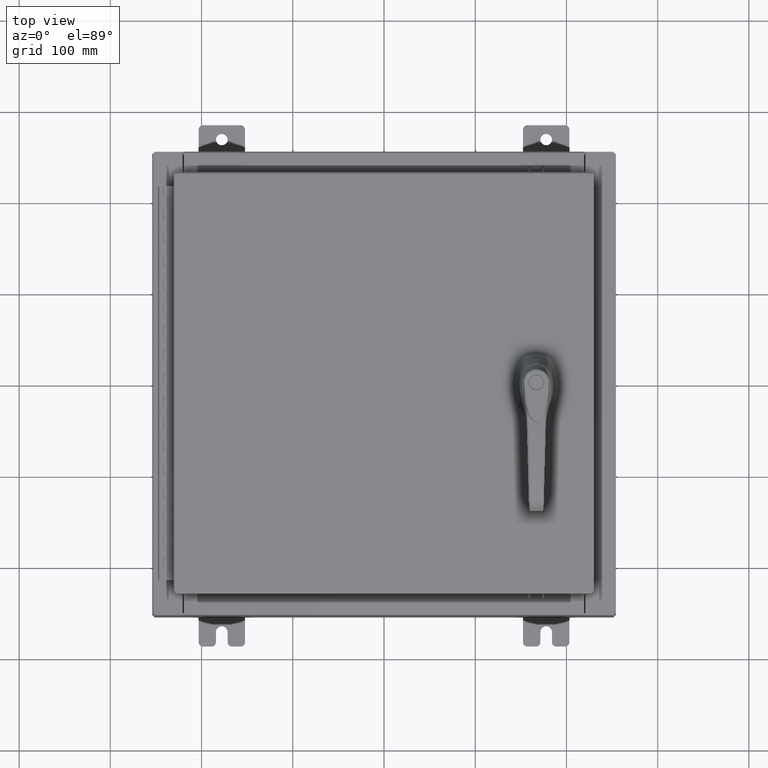
[diagram: clean part render]
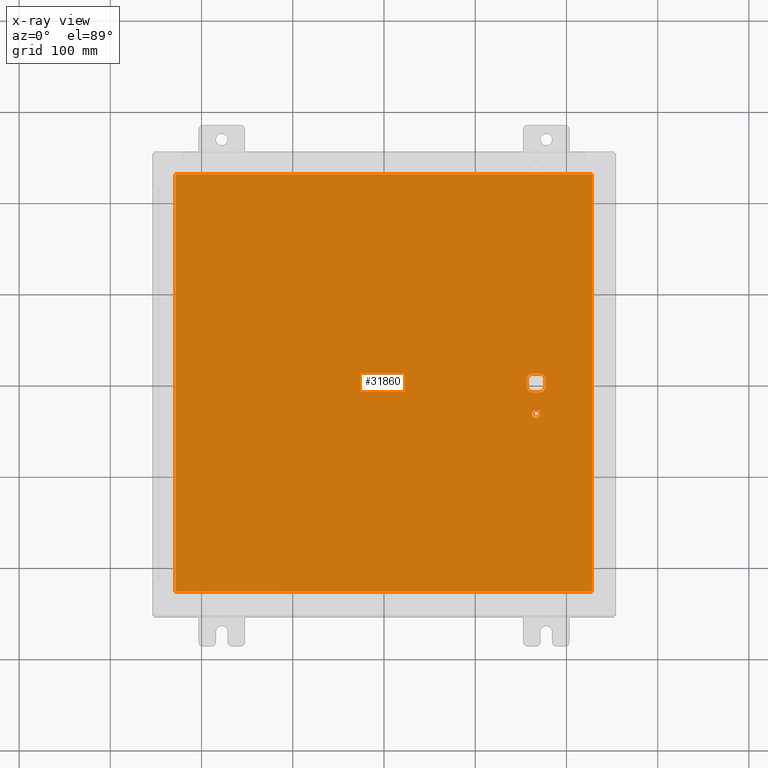
[diagram: x-ray — body ghosted, one internal face saturated and labeled with its STEP entity id]
A machine part, top view, then the same camera in x-ray: the body is ghosted and one INTERNAL B-rep face — a face not visible from any outside direction — is saturated and labeled: STEP entity #31860.
In plain terms, the highlighted planar face has unit normal (0, 0, -1).
Its self-contained STEP definition (entity closure, byte-faithful):
#274 = LINE ( 'NONE', #34196, #42997 ) ;
#819 = EDGE_CURVE ( 'NONE', #46008, #16429, #53065, .T. ) ;
#1120 = DIRECTION ( 'NONE',  ( -0.0000000000000000000, -0.0000000000000000000, 1.000000000000000000 ) ) ;
#2423 = CIRCLE ( 'NONE', #10946, 0.1715000000000011500 ) ;
#3009 = ORIENTED_EDGE ( 'NONE', *, *, #19017, .T. ) ;
#4136 = DIRECTION ( 'NONE',  ( 2.728745808672813300E-015, -1.000000000000000000, 0.0000000000000000000 ) ) ;
#4371 = VECTOR ( 'NONE', #79725, 39.37007874015748100 ) ;
#5000 = VERTEX_POINT ( 'NONE', #75630 ) ;
#5505 = ORIENTED_EDGE ( 'NONE', *, *, #56706, .T. ) ;
#5556 = PLANE ( 'NONE',  #33378 ) ;
#5800 = VERTEX_POINT ( 'NONE', #94545 ) ;
#5904 = CARTESIAN_POINT ( 'NONE',  ( 0.0000000000000000000, 0.0000000000000000000, -0.07470000000000000300 ) ) ;
#6536 = EDGE_CURVE ( 'NONE', #62257, #5000, #78678, .T. ) ;
#7367 = DIRECTION ( 'NONE',  ( -1.000000000000000000, 8.881784197001256300E-016, 0.0000000000000000000 ) ) ;
#7537 = VERTEX_POINT ( 'NONE', #52341 ) ;
#7783 = AXIS2_PLACEMENT_3D ( 'NONE', #34331, #93984, #42894 ) ;
#9329 = EDGE_CURVE ( 'NONE', #103218, #25532, #78359, .T. ) ;
#9909 = DIRECTION ( 'NONE',  ( 0.0000000000000000000, -1.000000000000000000, 0.0000000000000000000 ) ) ;
#10714 = ORIENTED_EDGE ( 'NONE', *, *, #6536, .F. ) ;
#10946 = AXIS2_PLACEMENT_3D ( 'NONE', #79946, #28875, #88531 ) ;
#11270 = EDGE_CURVE ( 'NONE', #5000, #7537, #70139, .T. ) ;
#12421 = CARTESIAN_POINT ( 'NONE',  ( 6.749500000000001200, -1.338000000000000100, -0.07470000000000003000 ) ) ;
#13251 = VECTOR ( 'NONE', #9909, 39.37007874015748100 ) ;
#14467 = DIRECTION ( 'NONE',  ( -1.000000000000000000, 0.0000000000000000000, -0.0000000000000000000 ) ) ;
#16429 = VERTEX_POINT ( 'NONE', #63880 ) ;
#17918 = VECTOR ( 'NONE', #88456, 39.37007874015748100 ) ;
#18158 = DIRECTION ( 'NONE',  ( 0.0000000000000000000, -1.000000000000000000, 0.0000000000000000000 ) ) ;
#19017 = EDGE_CURVE ( 'NONE', #62636, #71938, #66761, .T. ) ;
#19097 = FACE_BOUND ( 'NONE', #106606, .T. ) ;
#20975 = CARTESIAN_POINT ( 'NONE',  ( 6.175000000000073500, -0.2002273707563079800, -0.07470000000000003000 ) ) ;
#21313 = ORIENTED_EDGE ( 'NONE', *, *, #9329, .T. ) ;
#22343 = CARTESIAN_POINT ( 'NONE',  ( 6.377772629243690300, 0.4029999999999252000, -0.07470000000000003000 ) ) ;
#22349 = VECTOR ( 'NONE', #90900, 39.37007874015748100 ) ;
#25532 = VERTEX_POINT ( 'NONE', #86023 ) ;
#27834 = ORIENTED_EDGE ( 'NONE', *, *, #54186, .T. ) ;
#28875 = DIRECTION ( 'NONE',  ( -0.0000000000000000000, -0.0000000000000000000, 1.000000000000000000 ) ) ;
#29151 = EDGE_LOOP ( 'NONE', ( #63418, #104148, #10714, #43017 ) ) ;
#30131 = VECTOR ( 'NONE', #78459, 39.37007874015748100 ) ;
#30554 = LINE ( 'NONE', #98124, #53156 ) ;
#31817 = VECTOR ( 'NONE', #18158, 39.37007874015748100 ) ;
#31860 = ADVANCED_FACE ( 'NONE', ( #109922, #41798, #19097 ), #5556, .T. ) ;
#33378 = AXIS2_PLACEMENT_3D ( 'NONE', #5904, #65595, #14467 ) ;
#34196 = CARTESIAN_POINT ( 'NONE',  ( 8.990300000000001300, 9.006299999999999500, -0.07470000000000021100 ) ) ;
#34331 = CARTESIAN_POINT ( 'NONE',  ( 6.577999999999999400, -1.338000000000000100, -0.07470000000000003000 ) ) ;
#34682 = CIRCLE ( 'NONE', #7783, 0.1715000000000011500 ) ;
#35038 = EDGE_CURVE ( 'NONE', #71938, #39346, #65042, .T. ) ;
#37221 = CARTESIAN_POINT ( 'NONE',  ( 8.990299999999999500, -9.006299999999999500, -0.07470000000000076600 ) ) ;
#37356 = CARTESIAN_POINT ( 'NONE',  ( 0.0000000000000000000, -0.4029999999999252000, -0.07470000000000003000 ) ) ;
#39346 = VERTEX_POINT ( 'NONE', #22343 ) ;
#40410 = DIRECTION ( 'NONE',  ( -0.0000000000000000000, -0.0000000000000000000, 1.000000000000000000 ) ) ;
#41214 = EDGE_CURVE ( 'NONE', #5800, #62257, #274, .T. ) ;
#41798 = FACE_OUTER_BOUND ( 'NONE', #29151, .T. ) ;
#42619 = CARTESIAN_POINT ( 'NONE',  ( 6.577999999999999400, 0.0000000000000000000, -0.07470000000000003000 ) ) ;
#42757 = DIRECTION ( 'NONE',  ( -1.000000000000000000, -0.0000000000000000000, -0.0000000000000000000 ) ) ;
#42894 = DIRECTION ( 'NONE',  ( -1.000000000000000000, 0.0000000000000000000, 0.0000000000000000000 ) ) ;
#42997 = VECTOR ( 'NONE', #42757, 39.37007874015748100 ) ;
#43017 = ORIENTED_EDGE ( 'NONE', *, *, #41214, .F. ) ;
#44788 = ORIENTED_EDGE ( 'NONE', *, *, #819, .T. ) ;
#46008 = VERTEX_POINT ( 'NONE', #20975 ) ;
#47676 = ORIENTED_EDGE ( 'NONE', *, *, #58362, .T. ) ;
#49694 = LINE ( 'NONE', #37221, #4371 ) ;
#50295 = CARTESIAN_POINT ( 'NONE',  ( 6.577999999999999400, 0.0000000000000000000, -0.07470000000000003000 ) ) ;
#51139 = DIRECTION ( 'NONE',  ( -1.000000000000000000, 0.0000000000000000000, 0.0000000000000000000 ) ) ;
#52187 = CARTESIAN_POINT ( 'NONE',  ( 6.577999999999999400, 0.0000000000000000000, -0.07470000000000003000 ) ) ;
#52341 = CARTESIAN_POINT ( 'NONE',  ( 8.990299999999999500, -9.006299999999999500, -0.07470000000000000300 ) ) ;
#53065 = CIRCLE ( 'NONE', #56391, 0.4499999999999156900 ) ;
#53156 = VECTOR ( 'NONE', #4136, 39.37007874015748100 ) ;
#54186 = EDGE_CURVE ( 'NONE', #105099, #96484, #2423, .T. ) ;
#54442 = LINE ( 'NONE', #60348, #31817 ) ;
#56391 = AXIS2_PLACEMENT_3D ( 'NONE', #50295, #102192, #7367 ) ;
#56706 = EDGE_CURVE ( 'NONE', #39346, #81533, #108930, .T. ) ;
#58362 = EDGE_CURVE ( 'NONE', #16429, #103218, #85993, .T. ) ;
#60348 = CARTESIAN_POINT ( 'NONE',  ( 6.175000000000073500, 0.0000000000000000000, -0.07470000000000003000 ) ) ;
#60794 = DIRECTION ( 'NONE',  ( -1.000000000000000000, 0.0000000000000000000, 0.0000000000000000000 ) ) ;
#61039 = CARTESIAN_POINT ( 'NONE',  ( -8.990299999999997700, 9.006299999999999500, -0.07470000000000019700 ) ) ;
#61824 = AXIS2_PLACEMENT_3D ( 'NONE', #91498, #40410, #100079 ) ;
#62144 = AXIS2_PLACEMENT_3D ( 'NONE', #52187, #1120, #60794 ) ;
#62257 = VERTEX_POINT ( 'NONE', #83351 ) ;
#62636 = VERTEX_POINT ( 'NONE', #96723 ) ;
#63262 = AXIS2_PLACEMENT_3D ( 'NONE', #42619, #102298, #51139 ) ;
#63418 = ORIENTED_EDGE ( 'NONE', *, *, #83189, .F. ) ;
#63880 = CARTESIAN_POINT ( 'NONE',  ( 6.377772629243690300, -0.4029999999999250300, -0.07470000000000003000 ) ) ;
#65042 = LINE ( 'NONE', #82298, #22349 ) ;
#65090 = EDGE_CURVE ( 'NONE', #96484, #105099, #34682, .T. ) ;
#65371 = ORIENTED_EDGE ( 'NONE', *, *, #66574, .F. ) ;
#65595 = DIRECTION ( 'NONE',  ( 0.0000000000000000000, 0.0000000000000000000, -1.000000000000000000 ) ) ;
#66574 = EDGE_CURVE ( 'NONE', #62636, #25532, #30554, .T. ) ;
#66761 = CIRCLE ( 'NONE', #62144, 0.4499999999999156900 ) ;
#67053 = EDGE_CURVE ( 'NONE', #81533, #46008, #54442, .T. ) ;
#70139 = LINE ( 'NONE', #70268, #30131 ) ;
#70268 = CARTESIAN_POINT ( 'NONE',  ( -8.990299999999999500, -9.006299999999999500, -0.07470000000000021100 ) ) ;
#71376 = EDGE_LOOP ( 'NONE', ( #27834, #110639 ) ) ;
#71938 = VERTEX_POINT ( 'NONE', #86199 ) ;
#75630 = CARTESIAN_POINT ( 'NONE',  ( -8.990299999999997700, -9.006299999999999500, -0.07470000000000000300 ) ) ;
#78359 = CIRCLE ( 'NONE', #61824, 0.4499999999999156900 ) ;
#78459 = DIRECTION ( 'NONE',  ( 1.000000000000000000, -0.0000000000000000000, -0.0000000000000000000 ) ) ;
#78678 = LINE ( 'NONE', #61039, #13251 ) ;
#79725 = DIRECTION ( 'NONE',  ( 0.0000000000000000000, 1.000000000000000000, 0.0000000000000000000 ) ) ;
#79946 = CARTESIAN_POINT ( 'NONE',  ( 6.577999999999999400, -1.338000000000000100, -0.07470000000000003000 ) ) ;
#81533 = VERTEX_POINT ( 'NONE', #101024 ) ;
#82298 = CARTESIAN_POINT ( 'NONE',  ( 0.0000000000000000000, 0.4029999999999252000, -0.07470000000000003000 ) ) ;
#83189 = EDGE_CURVE ( 'NONE', #7537, #5800, #49694, .T. ) ;
#83351 = CARTESIAN_POINT ( 'NONE',  ( -8.990299999999997700, 9.006299999999997800, -0.07470000000000000300 ) ) ;
#85993 = LINE ( 'NONE', #37356, #17918 ) ;
#86023 = CARTESIAN_POINT ( 'NONE',  ( 6.980999999999925300, -0.2002273707563075900, -0.07470000000000003000 ) ) ;
#86199 = CARTESIAN_POINT ( 'NONE',  ( 6.778227370756309400, 0.4029999999999250300, -0.07470000000000003000 ) ) ;
#88456 = DIRECTION ( 'NONE',  ( 1.000000000000000000, 0.0000000000000000000, 0.0000000000000000000 ) ) ;
#88531 = DIRECTION ( 'NONE',  ( -1.000000000000000000, 0.0000000000000000000, 0.0000000000000000000 ) ) ;
#88927 = CARTESIAN_POINT ( 'NONE',  ( 6.406499999999998500, -1.338000000000000100, -0.07470000000000003000 ) ) ;
#90349 = CARTESIAN_POINT ( 'NONE',  ( 6.778227370756309400, -0.4029999999999252000, -0.07470000000000003000 ) ) ;
#90900 = DIRECTION ( 'NONE',  ( -1.000000000000000000, 0.0000000000000000000, 0.0000000000000000000 ) ) ;
#91198 = ORIENTED_EDGE ( 'NONE', *, *, #35038, .T. ) ;
#91498 = CARTESIAN_POINT ( 'NONE',  ( 6.577999999999999400, 0.0000000000000000000, -0.07470000000000003000 ) ) ;
#93984 = DIRECTION ( 'NONE',  ( -0.0000000000000000000, -0.0000000000000000000, 1.000000000000000000 ) ) ;
#94545 = CARTESIAN_POINT ( 'NONE',  ( 8.990299999999997700, 9.006299999999999500, -0.07470000000000000300 ) ) ;
#96484 = VERTEX_POINT ( 'NONE', #88927 ) ;
#96723 = CARTESIAN_POINT ( 'NONE',  ( 6.980999999999925300, 0.2002273707563080300, -0.07470000000000003000 ) ) ;
#98124 = CARTESIAN_POINT ( 'NONE',  ( 6.980999999999925300, 1.904937449034470600E-014, -0.07470000000000003000 ) ) ;
#100079 = DIRECTION ( 'NONE',  ( -1.000000000000000000, 1.776356839400251300E-015, 0.0000000000000000000 ) ) ;
#101024 = CARTESIAN_POINT ( 'NONE',  ( 6.175000000000073500, 0.2002273707563080300, -0.07470000000000003000 ) ) ;
#101635 = ORIENTED_EDGE ( 'NONE', *, *, #67053, .T. ) ;
#102192 = DIRECTION ( 'NONE',  ( -0.0000000000000000000, -0.0000000000000000000, 1.000000000000000000 ) ) ;
#102298 = DIRECTION ( 'NONE',  ( -0.0000000000000000000, -0.0000000000000000000, 1.000000000000000000 ) ) ;
#103218 = VERTEX_POINT ( 'NONE', #90349 ) ;
#104148 = ORIENTED_EDGE ( 'NONE', *, *, #11270, .F. ) ;
#105099 = VERTEX_POINT ( 'NONE', #12421 ) ;
#106606 = EDGE_LOOP ( 'NONE', ( #21313, #65371, #3009, #91198, #5505, #101635, #44788, #47676 ) ) ;
#108930 = CIRCLE ( 'NONE', #63262, 0.4499999999999156900 ) ;
#109922 = FACE_BOUND ( 'NONE', #71376, .T. ) ;
#110639 = ORIENTED_EDGE ( 'NONE', *, *, #65090, .T. ) ;